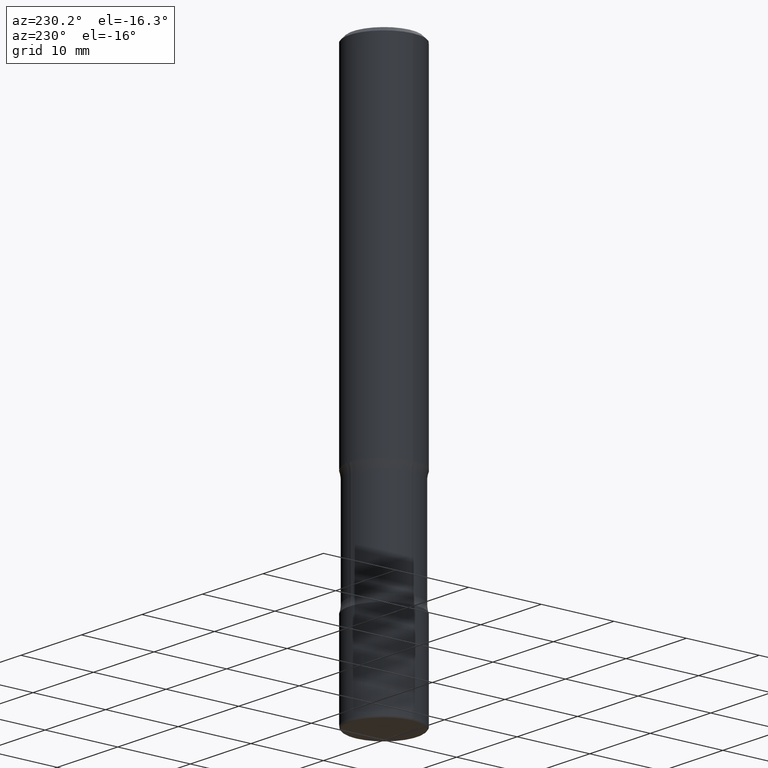
[diagram: clean part render]
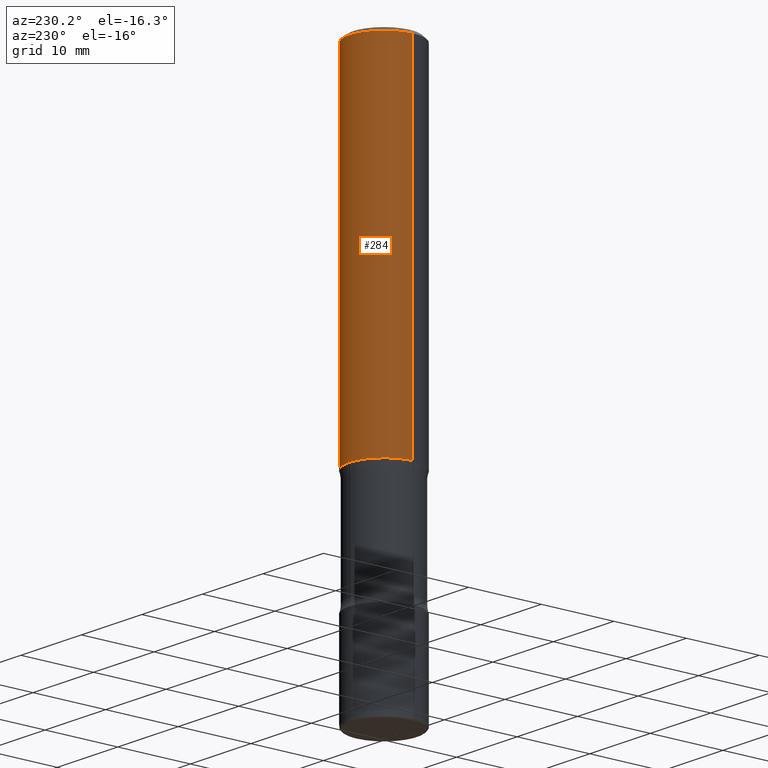
[diagram: same view with one face highlighted and labeled with its STEP entity id]
A machine part, auxiliary view. The second image highlights one B-rep face of the part: STEP entity #284.
In plain terms, the highlighted cylindrical surface (partial cylindrical patch) has radius 4.7625 mm, axis along (-0, 0, 1).
Its self-contained STEP definition (entity closure, byte-faithful):
#4 = EDGE_LOOP ( 'NONE', ( #538, #226, #294, #43 ) ) ;
#7 = AXIS2_PLACEMENT_3D ( 'NONE', #374, #740, #181 ) ;
#24 = DIRECTION ( 'NONE',  ( -2.445468806185136877E-29, 3.491481338843145188E-15, 1.000000000000000000 ) ) ;
#43 = ORIENTED_EDGE ( 'NONE', *, *, #53, .F. ) ;
#53 = EDGE_CURVE ( 'NONE', #238, #587, #150, .T. ) ;
#100 = EDGE_CURVE ( 'NONE', #587, #486, #330, .T. ) ;
#138 = DIRECTION ( 'NONE',  ( 1.000000000000000000, -6.982962677686265922E-15, 4.876176775795935793E-29 ) ) ;
#150 = LINE ( 'NONE', #405, #368 ) ;
#181 = DIRECTION ( 'NONE',  ( 1.000000000000000000, -6.982962677686266711E-15, 0.000000000000000000 ) ) ;
#190 = EDGE_CURVE ( 'NONE', #238, #520, #489, .T. ) ;
#194 = CYLINDRICAL_SURFACE ( 'NONE', #317, 0.1874999999999999167 ) ;
#226 = ORIENTED_EDGE ( 'NONE', *, *, #364, .T. ) ;
#238 = VERTEX_POINT ( 'NONE', #384 ) ;
#246 = DIRECTION ( 'NONE',  ( 1.000000000000000000, -6.982962677686265133E-15, 0.000000000000000000 ) ) ;
#251 = CARTESIAN_POINT ( 'NONE',  ( 4.890937612370282792E-31, -6.982962677686303935E-17, -0.02000000000000003858 ) ) ;
#254 = CARTESIAN_POINT ( 'NONE',  ( 0.000000000000000000, 0.000000000000000000, 0.000000000000000000 ) ) ;
#284 = ADVANCED_FACE ( 'NONE', ( #455 ), #194, .T. ) ;
#289 = LINE ( 'NONE', #526, #690 ) ;
#294 = ORIENTED_EDGE ( 'NONE', *, *, #100, .F. ) ;
#308 = CARTESIAN_POINT ( 'NONE',  ( 0.1874999999999997780, -1.356173001359023691E-15, -0.02000000000000003858 ) ) ;
#317 = AXIS2_PLACEMENT_3D ( 'NONE', #254, #378, #138 ) ;
#330 = CIRCLE ( 'NONE', #397, 0.1874999999999997780 ) ;
#364 = EDGE_CURVE ( 'NONE', #520, #486, #289, .T. ) ;
#368 = VECTOR ( 'NONE', #591, 39.37007874015748143 ) ;
#374 = CARTESIAN_POINT ( 'NONE',  ( 4.585254011597131119E-29, -6.546527510330898707E-15, -1.875000000000000000 ) ) ;
#378 = DIRECTION ( 'NONE',  ( -2.445468806185136597E-29, 3.491481338843145583E-15, 1.000000000000000000 ) ) ;
#384 = CARTESIAN_POINT ( 'NONE',  ( 0.1875000000000000278, -7.855833012397073715E-15, -1.875000000000000000 ) ) ;
#397 = AXIS2_PLACEMENT_3D ( 'NONE', #251, #794, #246 ) ;
#405 = CARTESIAN_POINT ( 'NONE',  ( 0.1874999999999999167, -1.309305502066174219E-15, 9.142831454617375408E-30 ) ) ;
#455 = FACE_OUTER_BOUND ( 'NONE', #4, .T. ) ;
#486 = VERTEX_POINT ( 'NONE', #728 ) ;
#489 = CIRCLE ( 'NONE', #7, 0.1875000000000000278 ) ;
#520 = VERTEX_POINT ( 'NONE', #684 ) ;
#526 = CARTESIAN_POINT ( 'NONE',  ( -0.1874999999999999167, 1.332267629550187257E-15, -9.223003294227943787E-30 ) ) ;
#538 = ORIENTED_EDGE ( 'NONE', *, *, #190, .T. ) ;
#587 = VERTEX_POINT ( 'NONE', #308 ) ;
#591 = DIRECTION ( 'NONE',  ( -2.445468806185136877E-29, 3.491481338843145188E-15, 1.000000000000000000 ) ) ;
#684 = CARTESIAN_POINT ( 'NONE',  ( -0.1874999999999999722, -1.975910939003691182E-15, -1.875000000000000000 ) ) ;
#690 = VECTOR ( 'NONE', #24, 39.37007874015748143 ) ;
#728 = CARTESIAN_POINT ( 'NONE',  ( -0.1874999999999997780, 1.239475875289310330E-15, -0.02000000000000003858 ) ) ;
#740 = DIRECTION ( 'NONE',  ( -2.445468806185136597E-29, 3.491481338843145583E-15, 1.000000000000000000 ) ) ;
#794 = DIRECTION ( 'NONE',  ( -2.445468806185136597E-29, 3.491481338843145583E-15, 1.000000000000000000 ) ) ;